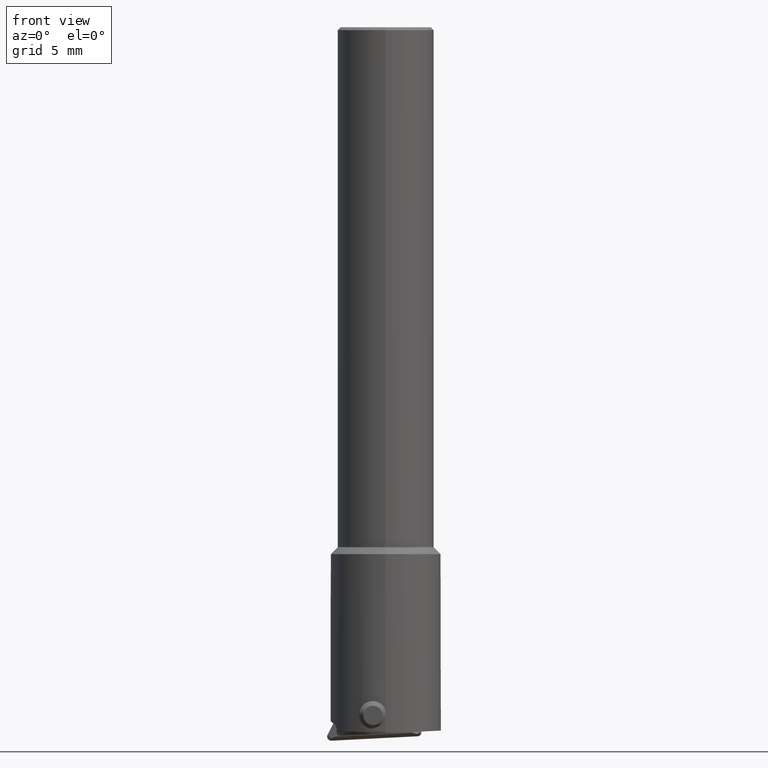
[diagram: clean part render]
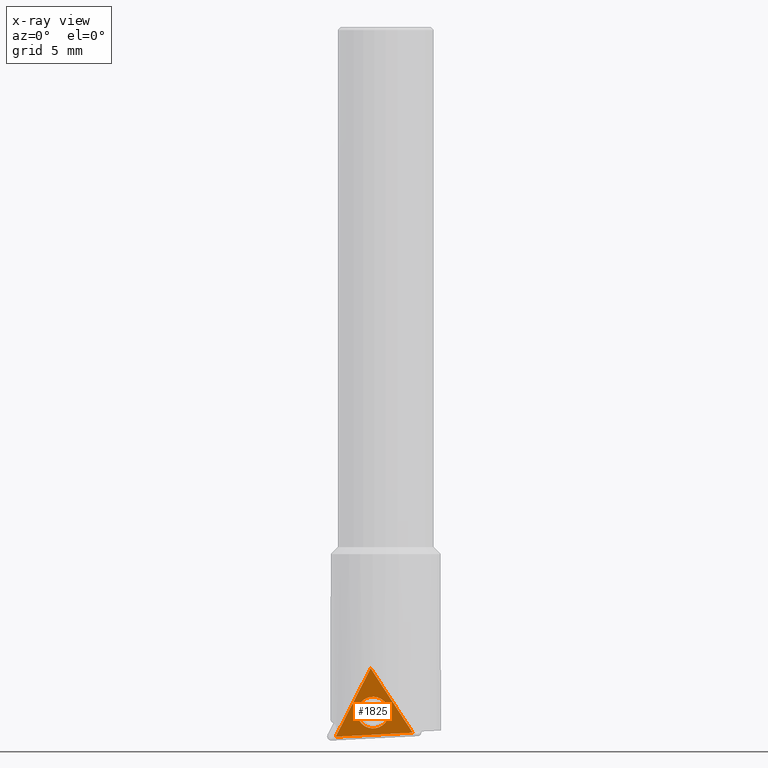
[diagram: x-ray — body ghosted, one internal face saturated and labeled with its STEP entity id]
A machine part, front view, then the same camera in x-ray: the body is ghosted and one INTERNAL B-rep face — a face not visible from any outside direction — is saturated and labeled: STEP entity #1825.
In plain terms, the highlighted planar face has unit normal (0, 0.9962, 0.0872).
Its self-contained STEP definition (entity closure, byte-faithful):
#643=EDGE_CURVE('NONE',#1717,#1133,#1852,.T.);
#995=EDGE_CURVE('NONE',#1373,#1413,#2244,.T.);
#1133=VERTEX_POINT('NONE',#2391);
#1149=EDGE_CURVE('NONE',#1413,#1373,#2410,.T.);
#1367=VERTEX_POINT('NONE',#2651);
#1371=EDGE_CURVE('NONE',#1367,#1717,#2655,.T.);
#1373=VERTEX_POINT('NONE',#2657);
#1413=VERTEX_POINT('NONE',#2703);
#1717=VERTEX_POINT('NONE',#3041);
#1809=EDGE_CURVE('NONE',#1133,#1367,#3142,.T.);
#1825=ADVANCED_FACE('NONE',(#3159,#3160),#3161,.F.);
#1852=LINE('',#3185,#3186);
#2244=CIRCLE('',#3763,1.15);
#2391=CARTESIAN_POINT('',(-1.08963717945277,-2.21692469695562,-11.7742873438631));
#2410=CIRCLE('',#4063,1.15);
#2651=CARTESIAN_POINT('',(-3.62800272406107,-1.78273022320574,-16.7371528883942));
#2655=LINE('',#4450,#4451);
#2657=CARTESIAN_POINT('',(-2.06911552496776,-1.93071736921979,-15.0456520693172));
#2703=CARTESIAN_POINT('',(0.22773240496776,-1.94120854123894,-14.925737424421));
#3041=CARTESIAN_POINT('',(1.95556522351384,-1.80823394552674,-16.44564400835));
#3142=LINE('',#5216,#5217);
#3159=FACE_OUTER_BOUND('',#5252,.T.);
#3160=FACE_BOUND('',#5253,.T.);
#3161=PLANE('',#5254);
#3185=CARTESIAN_POINT('',(2.1309804868069,-1.78469180077554,-16.7147319541754));
#3186=VECTOR('',#5256,1000.0);
#3763=AXIS2_PLACEMENT_3D('',#5734,#5735,#5736);
#4063=AXIS2_PLACEMENT_3D('',#5898,#5899,#5900);
#4450=CARTESIAN_POINT('',(2.2772000155672,-1.8097030571239,-16.4288519859559));
#4451=VECTOR('',#6181,1000.0);
#5216=CARTESIAN_POINT('',(-0.943417650692475,-2.24193595330397,-11.4884073756437));
#5217=VECTOR('',#6783,1000.0);
#5252=EDGE_LOOP('',(#6799,#6800,#6801));
#5253=EDGE_LOOP('',(#6802,#6803));
#5254=AXIS2_PLACEMENT_3D('',#6804,#6805,#6806);
#5256=DIRECTION('',(-0.544639035015028,-0.0730949562698838,0.835479173232824));
#5734=CARTESIAN_POINT('',(-0.92069156,-1.93596295522936,-14.9856947468691));
#5735=DIRECTION('',(8.52605111066105E-018,0.996194698091746,0.0871557427476583));
#5736=DIRECTION('',(-0.998629534754574,0.00456137913876306,-0.0521368021287861));
#5898=CARTESIAN_POINT('',(-0.92069156,-1.93596295522936,-14.9856947468691));
#5899=DIRECTION('',(8.52605111066105E-018,0.996194698091746,0.0871557427476583));
#5900=DIRECTION('',(-0.998629534754574,0.00456137913876306,-0.0521368021287861));
#6181=DIRECTION('',(0.998629534754574,-0.00456137913876303,0.0521368021287859));
#6783=DIRECTION('',(-0.45399049973954,0.0776563354086469,-0.88761597536161));
#6799=ORIENTED_EDGE('',*,*,#643,.T.);
#6800=ORIENTED_EDGE('',*,*,#1809,.T.);
#6801=ORIENTED_EDGE('',*,*,#1371,.T.);
#6802=ORIENTED_EDGE('',*,*,#995,.T.);
#6803=ORIENTED_EDGE('',*,*,#1149,.T.);
#6804=CARTESIAN_POINT('',(-0.92069156,-1.93596295522936,-14.9856947468691));
#6805=DIRECTION('',(8.67361737988404E-019,0.996194698091746,0.0871557427476583));
#6806=DIRECTION('',(-1.0,5.524391978287E-034,9.95185986194475E-018));